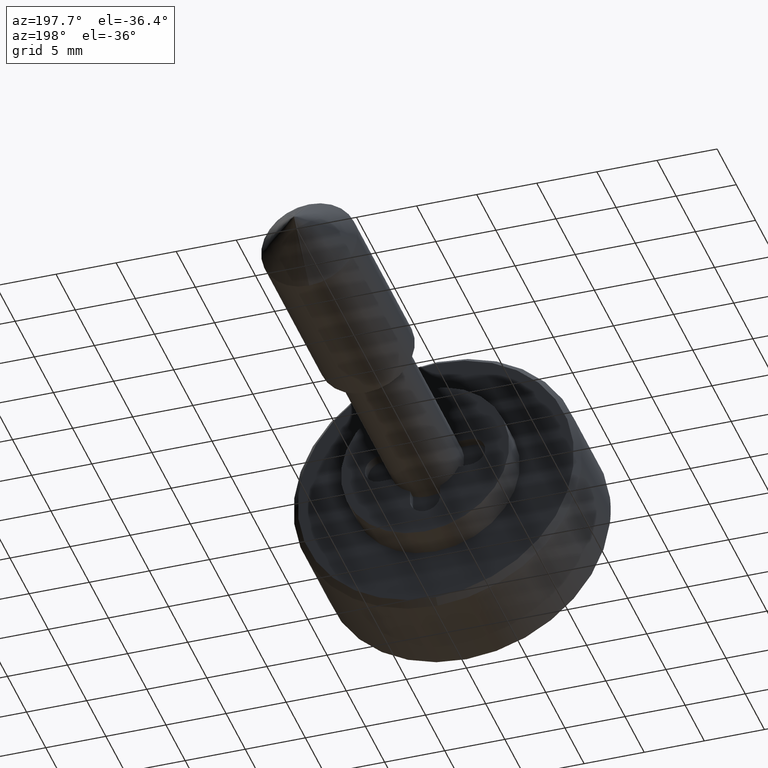
[diagram: clean part render]
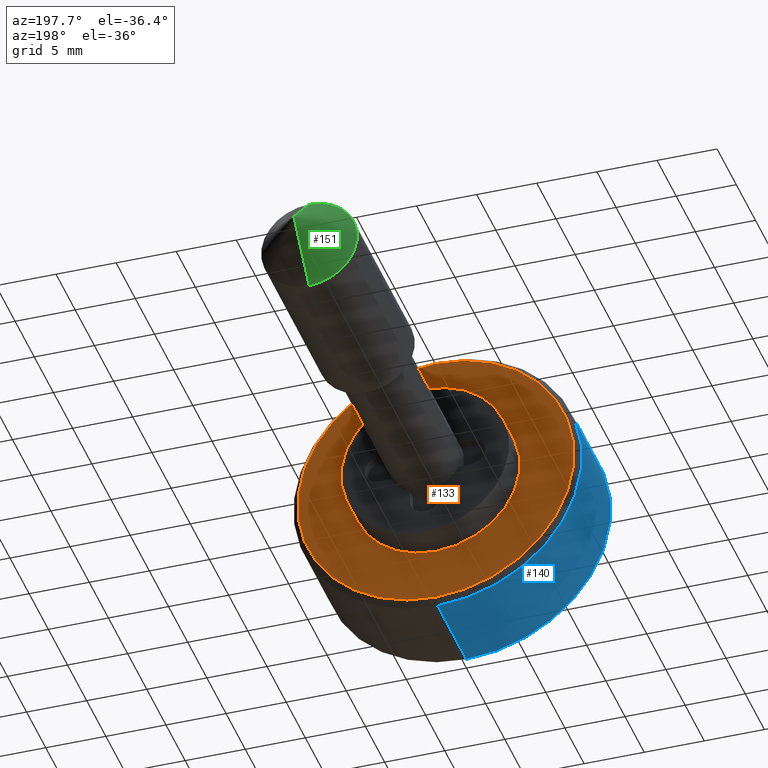
[diagram: same view with three faces highlighted in distinct colors, each labeled with its STEP entity id]
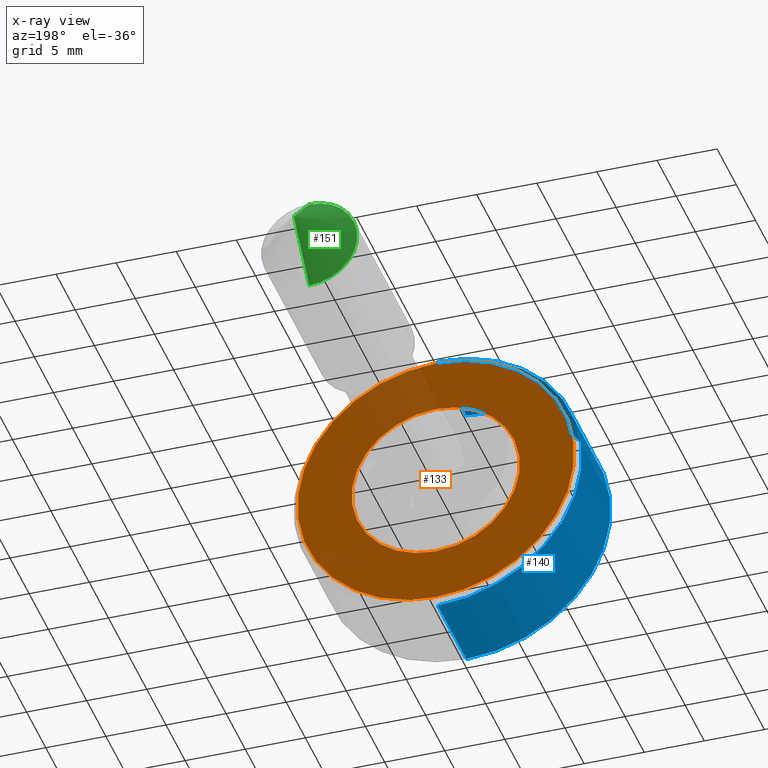
[diagram: x-ray of the same camera — body ghosted, the three highlighted faces saturated]
A machine part, auxiliary view with three faces highlighted in distinct colors.
The next image is the same camera in x-ray (body ghosted, the three faces saturated) — at least one of them is partly hidden behind the body in this view.
Their STEP definitions:

[orange] entity #133 — the highlighted planar face has unit normal (0, 1, 0).
#133=ADVANCED_FACE('',(#368,#369),#367,.T.);
#367=PLANE('',#690);
#368=FACE_OUTER_BOUND('',#691,.T.);
#369=FACE_BOUND('',#692,.T.);
#687=CARTESIAN_POINT('',(-2.00000000000E+00,-2.39023011445E+01,-1.49500000000E+01));
#688=DIRECTION('',(1.00000000000E+00,0.00000000000E+00,0.00000000000E+00));
#689=DIRECTION('',(0.00000000000E+00,1.00000000000E+00,0.00000000000E+00));
#690=AXIS2_PLACEMENT_3D('',#687,#688,#689);
#691=EDGE_LOOP('',(#942,#943));
#692=EDGE_LOOP('',(#944,#945));
#942=ORIENTED_EDGE('',*,*,#1088,.T.);
#943=ORIENTED_EDGE('',*,*,#1089,.T.);
#944=ORIENTED_EDGE('',*,*,#1090,.T.);
#945=ORIENTED_EDGE('',*,*,#1091,.T.);
#1088=EDGE_CURVE('',#1518,#1519,#1520,.T.);
#1089=EDGE_CURVE('',#1519,#1518,#1526,.T.);
#1090=EDGE_CURVE('',#1532,#1533,#1534,.T.);
#1091=EDGE_CURVE('',#1533,#1532,#1540,.T.);
#1518=VERTEX_POINT('',#2031);
#1519=VERTEX_POINT('',#2032);
#1520=CIRCLE('',#2036,1.15000000000E+01);
#1526=CIRCLE('',#2040,1.15000000000E+01);
#1532=VERTEX_POINT('',#2041);
#1533=VERTEX_POINT('',#2042);
#1534=CIRCLE('',#2046,7.00000000000E+00);
#1540=CIRCLE('',#2050,7.00000000000E+00);
#2031=CARTESIAN_POINT('',(-2.00000000000E+00,0.00000000000E+00,-1.15000000000E+01));
#2032=CARTESIAN_POINT('',(-2.00000000000E+00,5.92118946467E-16,1.15000000000E+01));
#2033=CARTESIAN_POINT('',(-2.00000000000E+00,0.00000000000E+00,0.00000000000E+00));
#2034=DIRECTION('',(1.00000000000E+00,0.00000000000E+00,0.00000000000E+00));
#2035=DIRECTION('',(0.00000000000E+00,-1.22460635382E-16,-1.00000000000E+00));
#2036=AXIS2_PLACEMENT_3D('',#2033,#2034,#2035);
#2037=CARTESIAN_POINT('',(-2.00000000000E+00,0.00000000000E+00,0.00000000000E+00));
#2038=DIRECTION('',(1.00000000000E+00,0.00000000000E+00,0.00000000000E+00));
#2039=DIRECTION('',(0.00000000000E+00,-1.22460635382E-16,-1.00000000000E+00));
#2040=AXIS2_PLACEMENT_3D('',#2037,#2038,#2039);
#2041=CARTESIAN_POINT('',(-2.00000000000E+00,0.00000000000E+00,-7.00000000000E+00));
#2042=CARTESIAN_POINT('',(-2.00000000000E+00,8.88178419700E-16,7.00000000000E+00));
#2043=CARTESIAN_POINT('',(-2.00000000000E+00,0.00000000000E+00,0.00000000000E+00));
#2044=DIRECTION('',(-1.00000000000E+00,0.00000000000E+00,-0.00000000000E+00));
#2045=DIRECTION('',(0.00000000000E+00,-1.22460635382E-16,-1.00000000000E+00));
#2046=AXIS2_PLACEMENT_3D('',#2043,#2044,#2045);
#2047=CARTESIAN_POINT('',(-2.00000000000E+00,0.00000000000E+00,0.00000000000E+00));
#2048=DIRECTION('',(-1.00000000000E+00,0.00000000000E+00,-0.00000000000E+00));
#2049=DIRECTION('',(0.00000000000E+00,-1.22460635382E-16,-1.00000000000E+00));
#2050=AXIS2_PLACEMENT_3D('',#2047,#2048,#2049);

[blue] entity #140 — the highlighted cylindrical surface (partial cylindrical patch) has radius 12 mm, axis along (0, -1, -0).
#140=ADVANCED_FACE('',(#440),#439,.T.);
#439=CYLINDRICAL_SURFACE('',#727,1.20000000000E+01);
#440=FACE_OUTER_BOUND('',#728,.T.);
#724=CARTESIAN_POINT('',(-1.00200000000E+03,0.00000000000E+00,0.00000000000E+00));
#725=DIRECTION('',(-1.00000000000E+00,-0.00000000000E+00,-0.00000000000E+00));
#726=DIRECTION('',(-0.00000000000E+00,-0.00000000000E+00,1.00000000000E+00));
#727=AXIS2_PLACEMENT_3D('',#724,#725,#726);
#728=EDGE_LOOP('',(#968,#969,#970,#971));
#968=ORIENTED_EDGE('',*,*,#1110,.F.);
#969=ORIENTED_EDGE('',*,*,#1111,.F.);
#970=ORIENTED_EDGE('',*,*,#1112,.T.);
#971=ORIENTED_EDGE('',*,*,#1113,.T.);
#1110=EDGE_CURVE('',#1668,#1669,#1670,.T.);
#1111=EDGE_CURVE('',#1676,#1668,#1677,.T.);
#1112=EDGE_CURVE('',#1676,#1683,#1684,.T.);
#1113=EDGE_CURVE('',#1683,#1669,#1690,.T.);
#1668=VERTEX_POINT('',#2133);
#1669=VERTEX_POINT('',#2134);
#1670=CIRCLE('',#2138,1.20000000000E+01);
#1676=VERTEX_POINT('',#2139);
#1677=(BOUNDED_CURVE() B_SPLINE_CURVE(1,(#2140,#2141),.UNSPECIFIED.,.F.,.F.) B_SPLINE_CURVE_WITH_KNOTS((2,2),(8.33333320912E-02,9.16666667486E-01),.UNSPECIFIED.) CURVE() GEOMETRIC_REPRESENTATION_ITEM() RATIONAL_B_SPLINE_CURVE((1.00000000000E+00,1.00000000000E+00)) REPRESENTATION_ITEM('') );
#1683=VERTEX_POINT('',#2142);
#1684=CIRCLE('',#2146,1.20000000000E+01);
#1690=(BOUNDED_CURVE() B_SPLINE_CURVE(1,(#2147,#2148),.UNSPECIFIED.,.F.,.F.) B_SPLINE_CURVE_WITH_KNOTS((2,2),(8.33333333333E-02,9.16666666667E-01),.UNSPECIFIED.) CURVE() GEOMETRIC_REPRESENTATION_ITEM() RATIONAL_B_SPLINE_CURVE((7.50000000000E-01,7.50000000000E-01)) REPRESENTATION_ITEM('') );
#2133=CARTESIAN_POINT('',(-9.99990000000E+00,0.00000000000E+00,1.20000000000E+01));
#2134=CARTESIAN_POINT('',(-9.99990000000E+00,-5.92118946467E-16,-1.20000000000E+01));
#2135=CARTESIAN_POINT('',(-9.99990000000E+00,0.00000000000E+00,0.00000000000E+00));
#2136=DIRECTION('',(-1.00000000000E+00,0.00000000000E+00,0.00000000000E+00));
#2137=DIRECTION('',(0.00000000000E+00,-1.22460635382E-16,1.00000000000E+00));
#2138=AXIS2_PLACEMENT_3D('',#2135,#2136,#2137);
#2139=CARTESIAN_POINT('',(-2.50000000000E+00,-4.73695157173E-15,1.20000000000E+01));
#2140=CARTESIAN_POINT('',(-2.49999998882E+00,0.00000000000E+00,1.20000000000E+01));
#2141=CARTESIAN_POINT('',(-9.99990000737E+00,0.00000000000E+00,1.20000000000E+01));
#2142=CARTESIAN_POINT('',(-2.50000000000E+00,0.00000000000E+00,-1.20000000000E+01));
#2143=CARTESIAN_POINT('',(-2.50000000000E+00,0.00000000000E+00,0.00000000000E+00));
#2144=DIRECTION('',(-1.00000000000E+00,0.00000000000E+00,-0.00000000000E+00));
#2145=DIRECTION('',(0.00000000000E+00,-1.22460635382E-16,-1.00000000000E+00));
#2146=AXIS2_PLACEMENT_3D('',#2143,#2144,#2145);
#2147=CARTESIAN_POINT('',(-2.50000000000E+00,-5.92118946467E-16,-1.20000000000E+01));
#2148=CARTESIAN_POINT('',(-9.99990000000E+00,-5.92118946467E-16,-1.20000000000E+01));

[green] entity #151 — the highlighted face is a freeform B-spline surface patch.
#151=ADVANCED_FACE('',(#550),#549,.T.);
#549=( BOUNDED_SURFACE() B_SPLINE_SURFACE( 2,1,((#797,#798),(#799,#800),(#801,#802),(#803,#804),(#805,#806)), .UNSPECIFIED.,.F.,.F.,.F.) B_SPLINE_SURFACE_WITH_KNOTS((3,2,3),(2,2),(0.00000000000E+00,5.00000000000E-01,1.00000000000E+00),(0.00000000000E+00,1.00000000000E+00), .UNSPECIFIED. ) GEOMETRIC_REPRESENTATION_ITEM() RATIONAL_B_SPLINE_SURFACE(((1.00000000000E+00,1.00000000000E+00),(7.07106781187E-01,7.07106781187E-01),(1.00000000000E+00,1.00000000000E+00),(7.07106781187E-01,7.07106781187E-01),(1.00000000000E+00,1.00000000000E+00))) REPRESENTATION_ITEM('') SURFACE() );
#550=FACE_OUTER_BOUND('',#807,.T.);
#797=CARTESIAN_POINT('',(3.50000000000E+01,0.00000000000E+00,0.00000000000E+00));
#798=CARTESIAN_POINT('',(3.10000000000E+01,4.89858719659E-16,4.00000000000E+00));
#799=CARTESIAN_POINT('',(3.50000000000E+01,0.00000000000E+00,0.00000000000E+00));
#800=CARTESIAN_POINT('',(3.10000000000E+01,4.00000000000E+00,4.00000000000E+00));
#801=CARTESIAN_POINT('',(3.50000000000E+01,0.00000000000E+00,0.00000000000E+00));
#802=CARTESIAN_POINT('',(3.10000000000E+01,4.00000000000E+00,-2.44929359829E-16));
#803=CARTESIAN_POINT('',(3.50000000000E+01,0.00000000000E+00,0.00000000000E+00));
#804=CARTESIAN_POINT('',(3.10000000000E+01,4.00000000000E+00,-4.00000000000E+00));
#805=CARTESIAN_POINT('',(3.50000000000E+01,0.00000000000E+00,0.00000000000E+00));
#806=CARTESIAN_POINT('',(3.10000000000E+01,0.00000000000E+00,-4.00000000000E+00));
#807=EDGE_LOOP('',(#1011,#1012,#1013));
#1011=ORIENTED_EDGE('',*,*,#1126,.T.);
#1012=ORIENTED_EDGE('',*,*,#1122,.F.);
#1013=ORIENTED_EDGE('',*,*,#1127,.F.);
#1122=EDGE_CURVE('',#1744,#1745,#1746,.T.);
#1126=EDGE_CURVE('',#1770,#1745,#1771,.T.);
#1127=EDGE_CURVE('',#1770,#1744,#1777,.T.);
#1744=VERTEX_POINT('',#2169);
#1745=VERTEX_POINT('',#2170);
#1746=CIRCLE('',#2174,4.00000000000E+00);
#1770=VERTEX_POINT('',#2183);
#1771=(BOUNDED_CURVE() B_SPLINE_CURVE(1,(#2184,#2185),.UNSPECIFIED.,.F.,.F.) B_SPLINE_CURVE_WITH_KNOTS((2,2),(0.00000000000E+00,1.00000000000E+00),.UNSPECIFIED.) CURVE() GEOMETRIC_REPRESENTATION_ITEM() RATIONAL_B_SPLINE_CURVE((1.00000000000E+00,1.00000000000E+00)) REPRESENTATION_ITEM('') );
#1777=(BOUNDED_CURVE() B_SPLINE_CURVE(1,(#2186,#2187),.UNSPECIFIED.,.F.,.F.) B_SPLINE_CURVE_WITH_KNOTS((2,2),(0.00000000000E+00,1.00000000000E+00),.UNSPECIFIED.) CURVE() GEOMETRIC_REPRESENTATION_ITEM() RATIONAL_B_SPLINE_CURVE((7.50000000000E-01,7.50000000000E-01)) REPRESENTATION_ITEM('') );
#2169=CARTESIAN_POINT('',(3.10000000000E+01,0.00000000000E+00,4.00000000000E+00));
#2170=CARTESIAN_POINT('',(3.10000000000E+01,4.44089209850E-16,-4.00000000000E+00));
#2171=CARTESIAN_POINT('',(3.10000000000E+01,0.00000000000E+00,0.00000000000E+00));
#2172=DIRECTION('',(-1.00000000000E+00,0.00000000000E+00,0.00000000000E+00));
#2173=DIRECTION('',(0.00000000000E+00,-1.22460635382E-16,1.00000000000E+00));
#2174=AXIS2_PLACEMENT_3D('',#2171,#2172,#2173);
#2183=CARTESIAN_POINT('',(3.50000000000E+01,0.00000000000E+00,0.00000000000E+00));
#2184=CARTESIAN_POINT('',(3.50000000000E+01,0.00000000000E+00,0.00000000000E+00));
#2185=CARTESIAN_POINT('',(3.10000000000E+01,-9.79717439318E-16,-4.00000000000E+00));
#2186=CARTESIAN_POINT('',(3.50000000000E+01,0.00000000000E+00,0.00000000000E+00));
#2187=CARTESIAN_POINT('',(3.10000000000E+01,1.03620815632E-15,4.00000000000E+00));